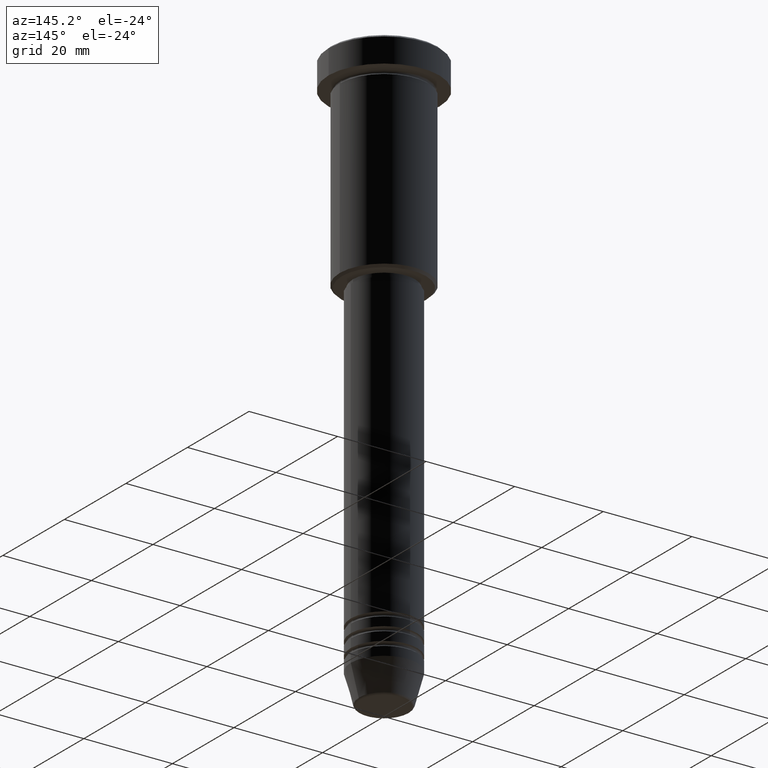
[diagram: clean part render]
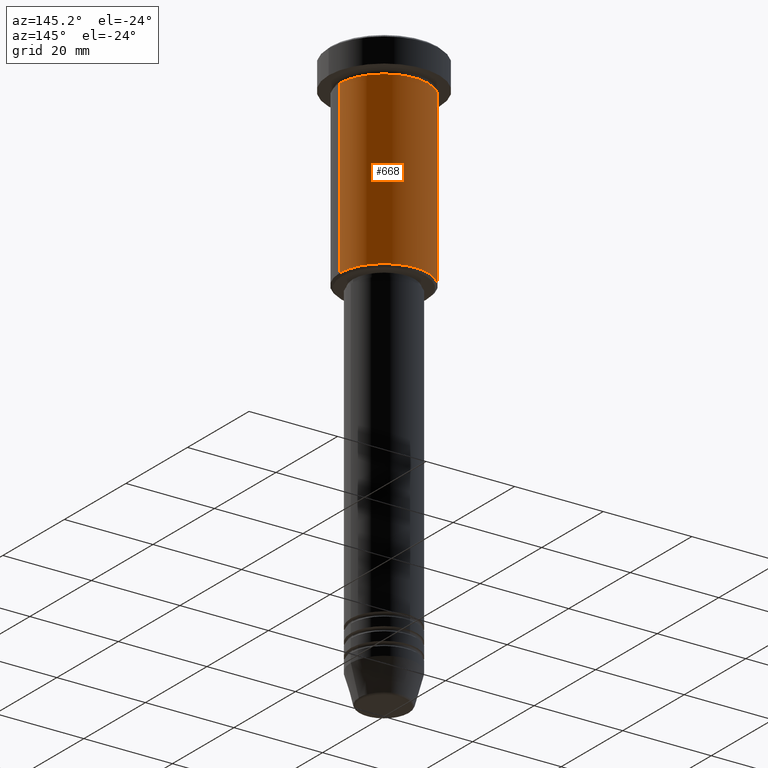
[diagram: same view with one face highlighted and labeled with its STEP entity id]
A machine part, auxiliary view. The second image highlights one B-rep face of the part: STEP entity #668.
In plain terms, the highlighted cylindrical surface (partial cylindrical patch) has radius 10 mm, axis along (-0, -0, 1).
Its self-contained STEP definition (entity closure, byte-faithful):
#13 = DIRECTION ( 'NONE',  ( -0.000000000000000000, -0.000000000000000000, 1.000000000000000000 ) ) ;
#87 = CARTESIAN_POINT ( 'NONE',  ( -10.00000000000000000, 1.224646799147353256E-15, -6.999999999999996447 ) ) ;
#99 = CARTESIAN_POINT ( 'NONE',  ( 10.00000000000000000, 0.000000000000000000, 0.000000000000000000 ) ) ;
#127 = VERTEX_POINT ( 'NONE', #332 ) ;
#132 = EDGE_CURVE ( 'NONE', #774, #580, #896, .T. ) ;
#188 = DIRECTION ( 'NONE',  ( -1.000000000000000000, 0.000000000000000000, 0.000000000000000000 ) ) ;
#197 = CARTESIAN_POINT ( 'NONE',  ( 10.00000000000000000, 0.000000000000000000, -6.999999999999996447 ) ) ;
#220 = EDGE_LOOP ( 'NONE', ( #685, #1143, #877, #753 ) ) ;
#237 = DIRECTION ( 'NONE',  ( -0.000000000000000000, -0.000000000000000000, 1.000000000000000000 ) ) ;
#266 = CYLINDRICAL_SURFACE ( 'NONE', #445, 10.00000000000000000 ) ;
#277 = VECTOR ( 'NONE', #399, 1000.000000000000000 ) ;
#285 = DIRECTION ( 'NONE',  ( -0.000000000000000000, -0.000000000000000000, 1.000000000000000000 ) ) ;
#290 = AXIS2_PLACEMENT_3D ( 'NONE', #504, #237, #978 ) ;
#332 = CARTESIAN_POINT ( 'NONE',  ( 10.00000000000000000, 0.000000000000000000, -45.50000000000000000 ) ) ;
#399 = DIRECTION ( 'NONE',  ( -0.000000000000000000, -0.000000000000000000, 1.000000000000000000 ) ) ;
#445 = AXIS2_PLACEMENT_3D ( 'NONE', #465, #833, #744 ) ;
#465 = CARTESIAN_POINT ( 'NONE',  ( 0.000000000000000000, 0.000000000000000000, 0.000000000000000000 ) ) ;
#468 = LINE ( 'NONE', #1098, #792 ) ;
#472 = LINE ( 'NONE', #99, #277 ) ;
#496 = EDGE_CURVE ( 'NONE', #1144, #580, #468, .T. ) ;
#504 = CARTESIAN_POINT ( 'NONE',  ( 0.000000000000000000, 0.000000000000000000, -6.999999999999996447 ) ) ;
#560 = CARTESIAN_POINT ( 'NONE',  ( -10.00000000000000000, 1.224646799147353256E-15, -45.50000000000000000 ) ) ;
#580 = VERTEX_POINT ( 'NONE', #87 ) ;
#668 = ADVANCED_FACE ( 'NONE', ( #988 ), #266, .T. ) ;
#685 = ORIENTED_EDGE ( 'NONE', *, *, #1142, .T. ) ;
#724 = CIRCLE ( 'NONE', #1062, 10.00000000000000000 ) ;
#744 = DIRECTION ( 'NONE',  ( 1.000000000000000000, 0.000000000000000000, 0.000000000000000000 ) ) ;
#753 = ORIENTED_EDGE ( 'NONE', *, *, #1011, .F. ) ;
#774 = VERTEX_POINT ( 'NONE', #197 ) ;
#792 = VECTOR ( 'NONE', #13, 1000.000000000000000 ) ;
#833 = DIRECTION ( 'NONE',  ( -0.000000000000000000, -0.000000000000000000, 1.000000000000000000 ) ) ;
#877 = ORIENTED_EDGE ( 'NONE', *, *, #132, .F. ) ;
#896 = CIRCLE ( 'NONE', #290, 10.00000000000000000 ) ;
#978 = DIRECTION ( 'NONE',  ( 1.000000000000000000, 0.000000000000000000, 0.000000000000000000 ) ) ;
#988 = FACE_OUTER_BOUND ( 'NONE', #220, .T. ) ;
#1011 = EDGE_CURVE ( 'NONE', #127, #774, #472, .T. ) ;
#1062 = AXIS2_PLACEMENT_3D ( 'NONE', #1101, #285, #188 ) ;
#1098 = CARTESIAN_POINT ( 'NONE',  ( -10.00000000000000000, 1.224646799147353256E-15, 0.000000000000000000 ) ) ;
#1101 = CARTESIAN_POINT ( 'NONE',  ( 0.000000000000000000, 0.000000000000000000, -45.50000000000000000 ) ) ;
#1142 = EDGE_CURVE ( 'NONE', #127, #1144, #724, .T. ) ;
#1143 = ORIENTED_EDGE ( 'NONE', *, *, #496, .T. ) ;
#1144 = VERTEX_POINT ( 'NONE', #560 ) ;